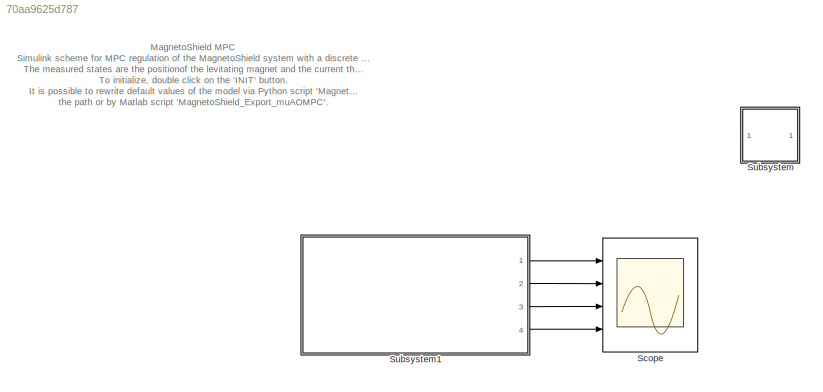
MODEL slx_70aa9625d787
KIND model
CONFIG AbsTol = auto
CONFIG EnableMultiTasking = on
CONFIG FixedStep = auto
CONFIG MaxStep = auto
CONFIG MinStep = auto
CONFIG RelTol = 1e-3
CONFIG SampleTimeConstraint = Unconstrained
CONFIG Solver = FixedStepAuto
CONFIG SolverName = FixedStepAuto
CONFIG StartTime = 0.0
CONFIG StopTime = 15
BLOCK [Scope] Scope
  Floating = off
  NumInputPorts = 4
  Ports = [4]
  ScopeSpecificationString = Simulink.scopes.TimeScopeBlockCfg('CurrentConfiguration', extmgr.ConfigurationSet(extmgr.Configuration('Core','General UI',true),extmgr.Configuration('Core','Source UI',true),extmgr.Configuration('Sources','WiredSimulink',true,'DataLoggingSaveFormat','StructureWithTime','DataLogging',true),extmgr.Configuration('Visuals','Time Domain',true,'SerializedDisplays',{struct('MinYLimReal','0.01138','MaxYL...<+3539ch>
BLOCK [SubSystem] Subsystem
  OpenFcn = clear;close all;clc;\ncd(fileparts(which(gcs)));\nload '../../../Identifikacia/Linear/Good_models/MagnetoShield_Alternative_Model_31.mat';\n\nTs = 0.003
  Ports = []
  RequestExecContextInheritance = off
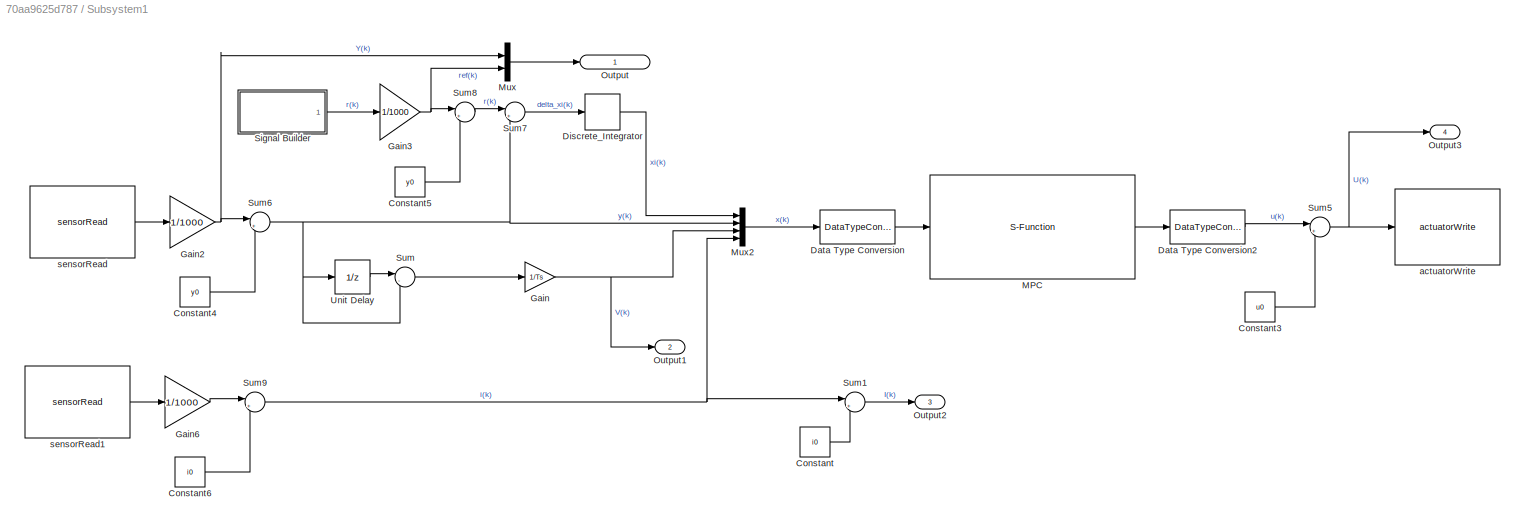
BLOCK [SubSystem] Subsystem1
  Ports = [0, 4]
  RequestExecContextInheritance = off
BLOCK [Constant] Subsystem1/Constant
  Value = i0
BLOCK [Constant] Subsystem1/Constant3
  Value = u0
BLOCK [Constant] Subsystem1/Constant4
  Value = y0
BLOCK [Constant] Subsystem1/Constant5
  Value = y0
BLOCK [Constant] Subsystem1/Constant6
  Value = i0
BLOCK [DataTypeConversion] Subsystem1/Data Type Conversion
  OutDataTypeStr = single
  RndMeth = Floor
  SaturateOnIntegerOverflow = off
BLOCK [DataTypeConversion] Subsystem1/Data Type Conversion2
  OutDataTypeStr = double
  RndMeth = Floor
  SaturateOnIntegerOverflow = off
BLOCK [DiscreteIntegrator] Subsystem1/Discrete_Integrator
  ICPrevOutput = DiscIntNeverNeededParam
  ICPrevScaledInput = DiscIntNeverNeededParam
  InitialConditionSetting = Auto
  IntegratorMethod = Accumulation: Forward Euler
  LimitOutput = on
  LowerSaturationLimit = -100
  Ports = [1, 1]
  SampleTime = Ts
  UpperSaturationLimit = 100
BLOCK [Gain] Subsystem1/Gain
  Gain = 1/Ts
  OutDataTypeStr = Inherit: Inherit via internal rule
  ParamDataTypeStr = Inherit: Inherit via internal rule
  SaturateOnIntegerOverflow = off
BLOCK [Gain] Subsystem1/Gain2
  Gain = 1/1000
  OutDataTypeStr = Inherit: Inherit via internal rule
  ParamDataTypeStr = Inherit: Inherit via internal rule
  SaturateOnIntegerOverflow = off
BLOCK [Gain] Subsystem1/Gain3
  Gain = 1/1000
  OutDataTypeStr = Inherit: Inherit via internal rule
  ParamDataTypeStr = Inherit: Inherit via internal rule
  SaturateOnIntegerOverflow = off
BLOCK [Gain] Subsystem1/Gain6
  Gain = 1/1000
  OutDataTypeStr = Inherit: Inherit via internal rule
  ParamDataTypeStr = Inherit: Inherit via internal rule
  SaturateOnIntegerOverflow = off
BLOCK [S-Function] Subsystem1/MPC
  CopyFcn = set_param(gcbh,'LinkStatus','none')
  EnableBusSupport = off
  FunctionName = Magneto_MPC
  InitFcn = try, set_param(gcb,'FunctionName','Magneto_MPC'), end
  OpenFcn = sfunctionwizard(gcbh)
  Ports = [1, 1]
  PreSaveFcn = try, set_param(gcb,'FunctionName','Magneto_MPC'), end
  SFcnIsStateOwnerBlock = off
  SFunctionDeploymentMode = off
  SFunctionModules = Magneto_MPC_wrapper mtx_ops mpc_const mpc mpc_ref mpc_stc mpc_inc fip_ops
BLOCK [Mux] Subsystem1/Mux
  DisplayOption = bar
  Inputs = 2
  Ports = [2, 1]
BLOCK [Mux] Subsystem1/Mux2
  DisplayOption = bar
  Ports = [4, 1]
BLOCK [Outport] Subsystem1/Output
  IconDisplay = Signal name
BLOCK [Outport] Subsystem1/Output1
  IconDisplay = Signal name
  Port = 2
BLOCK [Outport] Subsystem1/Output2
  IconDisplay = Signal name
  Port = 3
BLOCK [Outport] Subsystem1/Output3
  IconDisplay = Signal name
  Port = 4
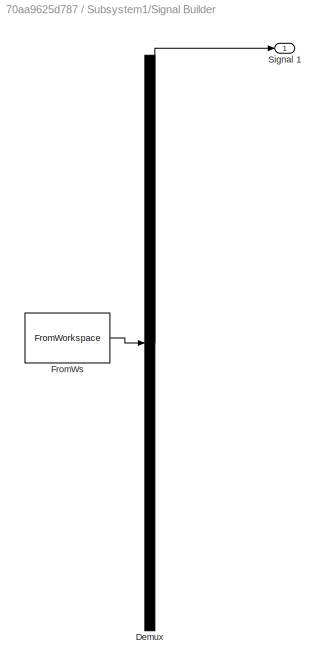
BLOCK [SubSystem] Subsystem1/Signal Builder
  ClipboardFcn = sigbuilder_block('clipboard');
  CloseFcn = sigbuilder_block('close');
  ContinueFcn = sigbuilder_block('continue');
  CopyFcn = sigbuilder_block('copy');
  DeleteFcn = sigbuilder_block('delete');
  LoadFcn = sigbuilder_block('load');
  MaskHideContents = on
  ModelCloseFcn = sigbuilder_block('modelClose');
  NameChangeFcn = sigbuilder_block('namechange');
  OpenFcn = sigbuilder_block('open',[434.4 169.8 550.8 400.2 ]);
  PauseFcn = sigbuilder_block('pause');
  Ports = [0, 1]
  PreSaveFcn = sigbuilder_block('preSave');
  RequestExecContextInheritance = off
  StartFcn = sigbuilder_block('start');
  StopFcn = sigbuilder_block('stop');
  Tag = STV Subsys
BLOCK [Demux] Subsystem1/Signal Builder/Demux
  Outputs = 1
  Ports = [1, 1]
  Tag = STV Demux
BLOCK [FromWorkspace] Subsystem1/Signal Builder/FromWs
  SampleTime = 0
  Tag = STV FromWs
  VariableName = tuvar
  ZeroCross = on
BLOCK [Outport] Subsystem1/Signal Builder/Signal 1
  IconDisplay = Port number
  Tag = STV Outport
BLOCK [Sum] Subsystem1/Sum
  IconShape = round
  InputSameDT = off
  Inputs = |-+
  OutDataTypeStr = Inherit: Inherit via internal rule
  Ports = [2, 1]
  SaturateOnIntegerOverflow = off
BLOCK [Sum] Subsystem1/Sum1
  IconShape = round
  InputSameDT = off
  Inputs = |++
  OutDataTypeStr = Inherit: Inherit via internal rule
  Ports = [2, 1]
  SaturateOnIntegerOverflow = off
BLOCK [Sum] Subsystem1/Sum5
  IconShape = round
  InputSameDT = off
  Inputs = |++
  OutDataTypeStr = Inherit: Inherit via internal rule
  Ports = [2, 1]
  SaturateOnIntegerOverflow = off
BLOCK [Sum] Subsystem1/Sum6
  IconShape = round
  InputSameDT = off
  Inputs = |+-
  OutDataTypeStr = Inherit: Inherit via internal rule
  Ports = [2, 1]
  SaturateOnIntegerOverflow = off
BLOCK [Sum] Subsystem1/Sum7
  IconShape = round
  InputSameDT = off
  Inputs = |+-
  OutDataTypeStr = Inherit: Inherit via internal rule
  Ports = [2, 1]
  SaturateOnIntegerOverflow = off
BLOCK [Sum] Subsystem1/Sum8
  IconShape = round
  InputSameDT = off
  Inputs = |+-
  OutDataTypeStr = Inherit: Inherit via internal rule
  Ports = [2, 1]
  SaturateOnIntegerOverflow = off
BLOCK [Sum] Subsystem1/Sum9
  IconShape = round
  InputSameDT = off
  Inputs = |+-
  OutDataTypeStr = Inherit: Inherit via internal rule
  Ports = [2, 1]
  SaturateOnIntegerOverflow = off
BLOCK [UnitDelay] Subsystem1/Unit Delay
  HasFrameUpgradeWarning = on
  SampleTime = -1
BLOCK [Reference] Subsystem1/actuatorWrite  REF=MagnetoLibrary/actuatorWrite
  Ports = [1]
  SourceBlock = MagnetoLibrary/actuatorWrite
  SourceProductName = AutomationShield
BLOCK [Reference] Subsystem1/sensorRead  REF=MagnetoLibrary/sensorRead
  Ports = [0, 1]
  SourceBlock = MagnetoLibrary/sensorRead
  SourceProductName = AutomationShield
BLOCK [Reference] Subsystem1/sensorRead1  REF=MagnetoLibrary/sensorRead
  Ports = [0, 1]
  SourceBlock = MagnetoLibrary/sensorRead
  SourceProductName = AutomationShield
ANNOTATION (root): MagnetoShield MPC Simulink scheme for MPC regulation of the MagnetoShield system with a discrete approximation of the velocity. The measured states are the positionof the levitating magnet and the current through the coil. To initialize, double click on the 'INIT' button. It is possible to rewrite default values of the model via Python script 'MagnetoShield.py', one folder higher on the path or by...<+557ch>
LINE Subsystem1/Constant3:1 -> Subsystem1/Sum5:2
LINE Subsystem1/Constant4:1 -> Subsystem1/Sum6:2
LINE Subsystem1/Constant5:1 -> Subsystem1/Sum8:2
LINE Subsystem1/Constant6:1 -> Subsystem1/Sum9:2
LINE Subsystem1/Constant:1 -> Subsystem1/Sum1:2
LINE Subsystem1/Data Type Conversion2:1 -> Subsystem1/Sum5:1
LINE Subsystem1/Data Type Conversion:1 -> Subsystem1/MPC:1
LINE Subsystem1/Discrete_Integrator:1 -> Subsystem1/Mux2:1
NET Subsystem1/Gain2:1 -> Subsystem1/Mux:1, Subsystem1/Sum6:1
NET Subsystem1/Gain3:1 -> Subsystem1/Mux:2, Subsystem1/Sum8:1
LINE Subsystem1/Gain6:1 -> Subsystem1/Sum9:1
NET Subsystem1/Gain:1 -> Subsystem1/Mux2:3, Subsystem1/Output1:1
LINE Subsystem1/MPC:1 -> Subsystem1/Data Type Conversion2:1
LINE Subsystem1/Mux2:1 -> Subsystem1/Data Type Conversion:1
LINE Subsystem1/Mux:1 -> Subsystem1/Output:1
LINE Subsystem1/Signal Builder:1 -> Subsystem1/Gain3:1
LINE Subsystem1/Sum1:1 -> Subsystem1/Output2:1
NET Subsystem1/Sum5:1 -> Subsystem1/Output3:1, Subsystem1/actuatorWrite:1
NET Subsystem1/Sum6:1 -> Subsystem1/Mux2:2, Subsystem1/Sum7:2, Subsystem1/Sum:2, Subsystem1/Unit Delay:1
LINE Subsystem1/Sum7:1 -> Subsystem1/Discrete_Integrator:1
LINE Subsystem1/Sum8:1 -> Subsystem1/Sum7:1
NET Subsystem1/Sum9:1 -> Subsystem1/Mux2:4, Subsystem1/Sum1:1
LINE Subsystem1/Sum:1 -> Subsystem1/Gain:1
LINE Subsystem1/Unit Delay:1 -> Subsystem1/Sum:1
LINE Subsystem1/sensorRead1:1 -> Subsystem1/Gain6:1
LINE Subsystem1/sensorRead:1 -> Subsystem1/Gain2:1
LINE Subsystem1:1 -> Scope:1
LINE Subsystem1:2 -> Scope:2
LINE Subsystem1:3 -> Scope:3
LINE Subsystem1:4 -> Scope:4
note: NET lines group one-source signal fan-out (src -> all destinations, sorted); 1:1 wires keep LINE
